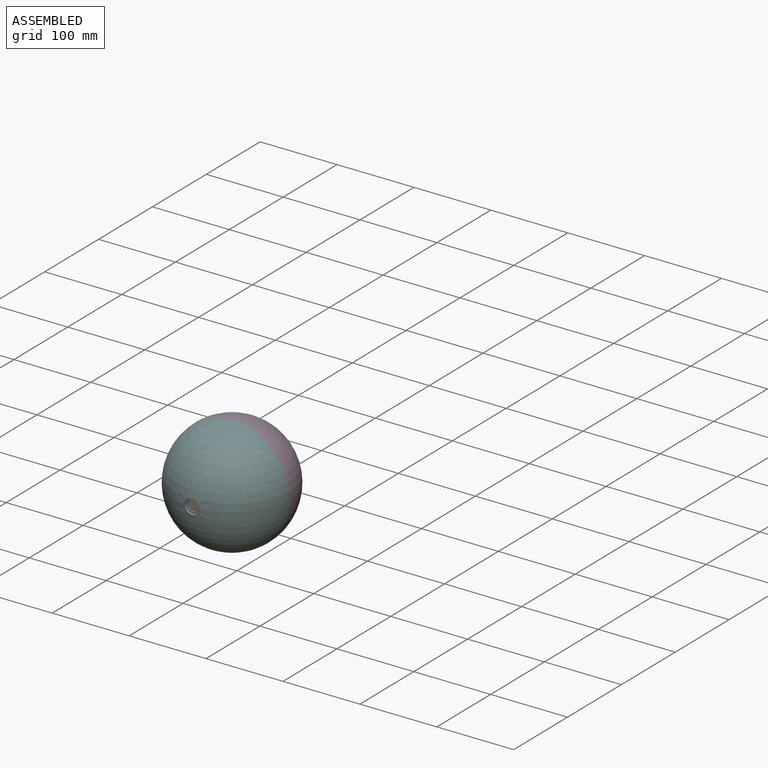
[diagram: assembled view]
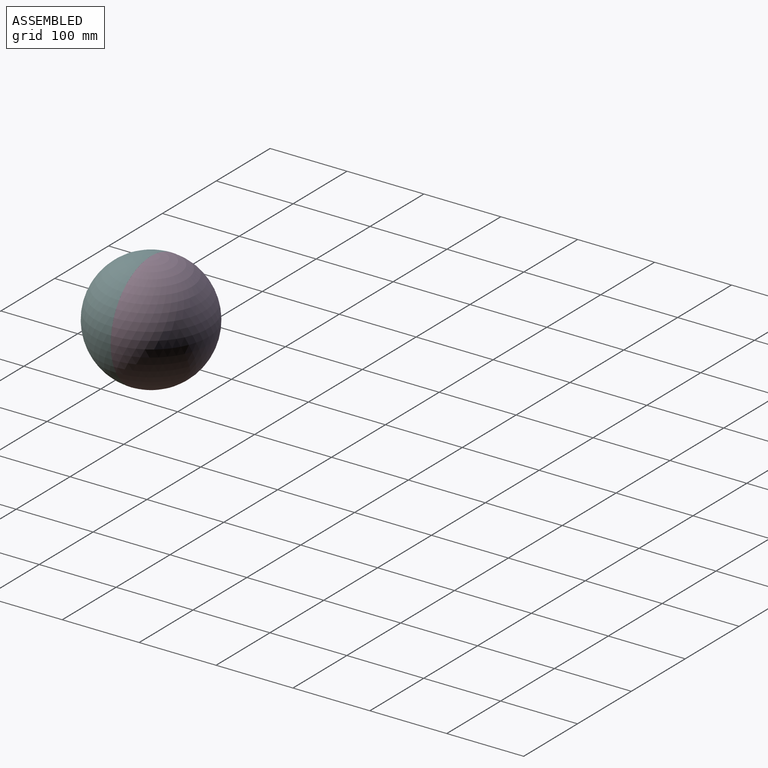
[diagram: assembled view, second angle]
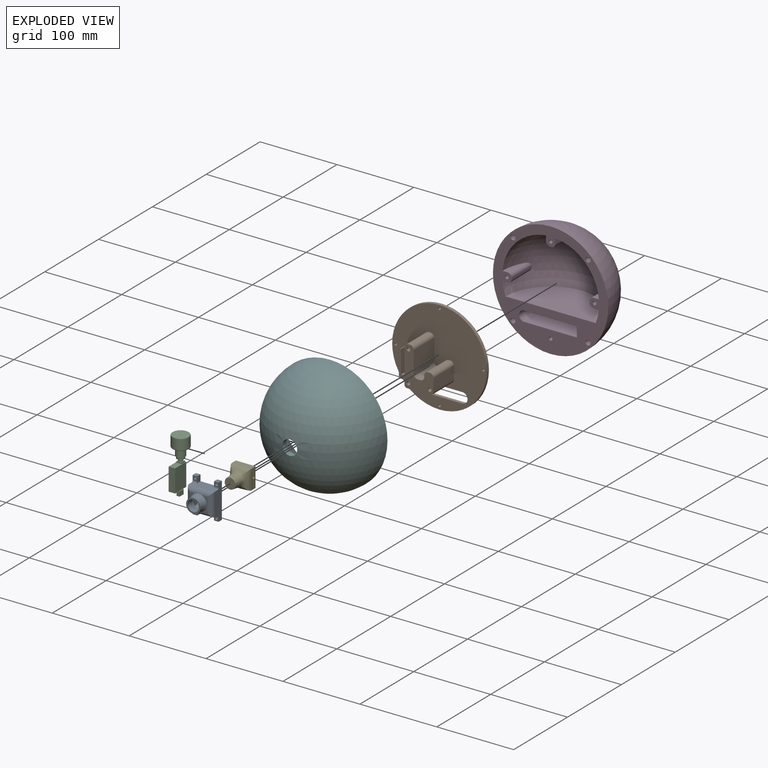
[diagram: exploded view]
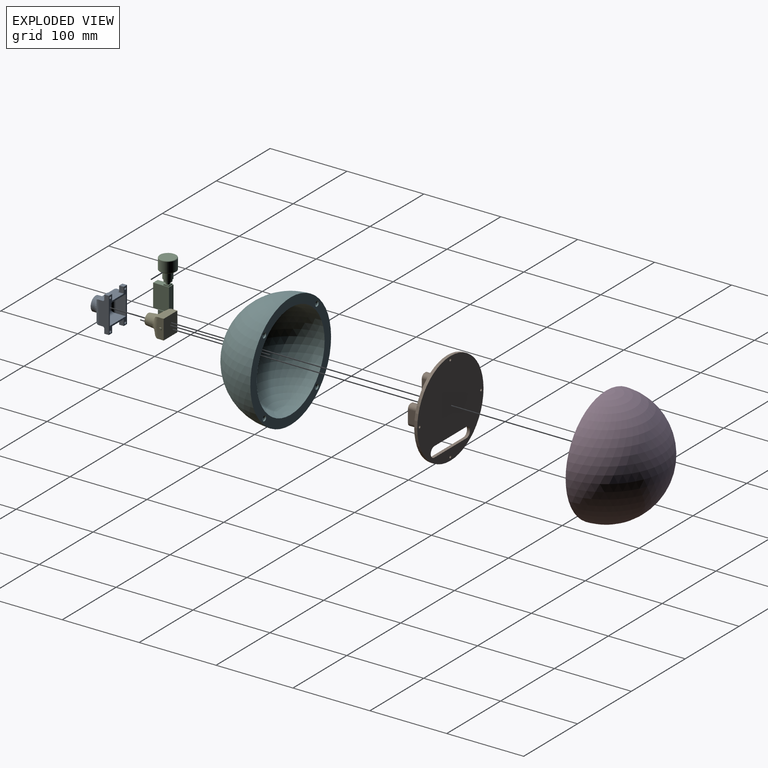
[diagram: exploded view, second angle]
ASSEMBLY  parts=6 mates=5
PART A: 50 faces, bbox 33.8x29x46 mm
  f0: plane 18x5.47mm, normal (0,-1,0), area 33.6mm2, adj f2,f34,f35,f36
  f1: plane 33.75x13.19mm, normal (0,0,-1), area 343.8mm2, adj f9,f11,f17,f20,f22,f35,f37,f39
  f2: cone r=9.25mm half-angle=14deg, axis (0,1,0), area 319.8mm2, adj f0,f5,f12,f37,f38
  f3: cylinder r=7.25mm len=14.5mm, axis (0,-1,0), area 239mm2, adj f4,f8
  f4: plane 18.5x18.5mm, normal (0,-1,0), area 103.7mm2, adj f3,f5
  f5: cylinder r=9.25mm len=18.5mm, axis (0,-1,0), area 290.6mm2, adj f2,f4
  f6: plane 21.75x18mm, normal (0,1,0), area 151mm2, adj f7,f42,f43,f44,f45
  f7: cylinder r=8.75mm len=17.5mm, axis (0,-1,0), area 41.4mm2, adj f6,f8
  f8: cone r=7.25mm half-angle=14deg, axis (0,1,0), area 310.9mm2, adj f3,f7
  f9: plane 46x13mm, normal (-1,0,0), area 487.7mm2, adj f1,f10,f17,f23,f25,f30,f33,f34
  f10: plane 33.75x13.19mm, normal (0,0,1), area 343.8mm2, adj f9,f11,f17,f26,f32,f36,f38,f40
  f11: plane 46x13mm, normal (1,0,0), area 487.7mm2, adj f1,f10,f17,f18,f21,f27,f29,f41
  f12: plane 18x5.47mm, normal (0,-1,0), area 33.6mm2, adj f2,f39,f40,f41
  f13: plane 29.75x13mm, normal (0,0,-1), area 386.8mm2, adj f14,f16,f17,f44
  f14: plane 26x13mm, normal (1,0,0), area 338mm2, adj f13,f15,f17,f42
  f15: plane 29.75x13mm, normal (0,0,1), area 386.8mm2, adj f14,f16,f17,f43
  f16: plane 26x13mm, normal (-1,0,0), area 338mm2, adj f13,f15,f17,f45
  f17: plane 46x33.75mm, normal (0,1,0), area 398.8mm2, adj f1,f9,f10,f11,f13,f14,f15,f16
  f18: plane 6x6mm, normal (0,0,-1), area 36mm2, adj f11,f17,f20,f21
  f19: cylinder r=1.6mm len=6mm, axis (0,1,0), area 60.3mm2, adj f17,f21
  f20: plane 8x8mm, normal (-1,0,0), area 48.9mm2, adj f1,f17,f18,f21,f49
  f21: plane 6x6mm, normal (0,-1,0), area 28mm2, adj f11,f18,f19,f20,f49
  f22: plane 8x8mm, normal (1,0,0), area 48.9mm2, adj f1,f17,f23,f25,f48
  f23: plane 6x6mm, normal (0,0,-1), area 36mm2, adj f9,f17,f22,f25
  f24: cylinder r=1.6mm len=6mm, axis (0,1,0), area 60.3mm2, adj f17,f25
  f25: plane 6x6mm, normal (0,-1,0), area 28mm2, adj f9,f22,f23,f24,f48
  f26: plane 8x8mm, normal (-1,0,0), area 48.9mm2, adj f10,f17,f27,f29,f47
  f27: plane 6x6mm, normal (0,0,1), area 36mm2, adj f11,f17,f26,f29
  f28: cylinder r=1.6mm len=6mm, axis (0,1,0), area 60.3mm2, adj f17,f29
  f29: plane 6x6mm, normal (0,-1,0), area 28mm2, adj f11,f26,f27,f28,f47
  f30: plane 6x6mm, normal (0,0,1), area 36mm2, adj f9,f17,f32,f33
  f31: cylinder r=1.6mm len=6mm, axis (0,1,0), area 60.3mm2, adj f17,f33
  f32: plane 8x8mm, normal (1,0,0), area 48.9mm2, adj f10,f17,f30,f33,f46
  f33: plane 6x6mm, normal (0,-1,0), area 28mm2, adj f9,f30,f31,f32,f46
  f34: cylinder r=6mm len=30mm, axis (0,0,-1), area 241.6mm2, adj f0,f9,f35,f36
  f35: cylinder r=6mm len=11.47mm, axis (1,0,0), area 87.5mm2, adj f0,f1,f34,f37
  f36: cylinder r=6mm len=11.47mm, axis (-1,0,0), area 87.5mm2, adj f0,f10,f34,f38
  f37: bspline ~10.82x6mm, area 90.9mm2, adj f1,f2,f35,f39
  f38: bspline ~10.82x6mm, area 90.9mm2, adj f2,f10,f36,f40
  f39: cylinder r=6mm len=11.47mm, axis (1,0,0), area 87.5mm2, adj f1,f12,f37,f41
  f40: cylinder r=6mm len=11.47mm, axis (-1,0,0), area 87.5mm2, adj f10,f12,f38,f41
  f41: cylinder r=6mm len=30mm, axis (0,0,1), area 241.6mm2, adj f11,f12,f39,f40
  f42: cylinder r=4mm len=26mm, axis (0,0,1), area 138.2mm2, adj f6,f14,f43,f44
  f43: cylinder r=4mm len=29.75mm, axis (-1,0,0), area 161.8mm2, adj f6,f15,f42,f45
  f44: cylinder r=4mm len=29.75mm, axis (1,0,0), area 161.8mm2, adj f6,f13,f42,f45
  f45: cylinder r=4mm len=26mm, axis (0,0,-1), area 138.2mm2, adj f6,f16,f43,f44
  f46: cylinder r=2mm len=6mm, axis (-1,0,0), area 18.8mm2, adj f9,f10,f32,f33
  f47: cylinder r=2mm len=6mm, axis (1,0,0), area 18.8mm2, adj f10,f11,f26,f29
  f48: cylinder r=2mm len=6mm, axis (1,0,0), area 18.8mm2, adj f1,f9,f22,f25
  f49: cylinder r=2mm len=6mm, axis (-1,0,0), area 18.8mm2, adj f1,f11,f20,f21
PART B: 48 faces, bbox 123x42x123 mm
  f0: plane 123x123mm, normal (0,-1,0), area 9362.7mm2, adj f1,f2,f4,f5,f6,f7,f8,f9
  f1: plane 8x1.5mm, normal (0,0,-1), area 12mm2, adj f0,f35,f37,f45
  f2: plane 44x38mm, normal (-1,0,0), area 1384mm2, adj f0,f12,f27,f35,f45,f46,f47
  f3: plane 123x123mm, normal (0,1,0), area 10903.7mm2, adj f4,f19,f20,f21,f22,f23,f24,f25
  f4: cylinder r=61.5mm len=123mm, axis (0,1,0), area 1545.7mm2, adj f0,f3
  f5: plane 38x2mm, normal (0,0,1), area 76mm2, adj f0,f12,f27,f32
  f6: plane 38x29.75mm, normal (0,0,-1), area 1130.5mm2, adj f0,f12,f28,f47
  f7: plane 38x16mm, normal (1,0,0), area 608mm2, adj f0,f12,f28,f29
  f8: plane 38x2mm, normal (0,0,1), area 76mm2, adj f0,f12,f29,f30
  f9: plane 38x2mm, normal (-1,0,0), area 76mm2, adj f0,f12,f30,f31
  f10: plane 38x3.75mm, normal (0,0,1), area 142.5mm2, adj f0,f12,f31,f33
  f11: plane 38x28mm, normal (1,0,0), area 1064mm2, adj f0,f12,f32,f33
  f12: plane 52x37.75mm, normal (0,-1,0), area 1058.4mm2, adj f2,f5,f6,f7,f8,f9,f10,f11
  f13: cone r=0mm half-angle=59deg, axis (0,-1,0), area 20.2mm2, adj f14
  f14: cylinder r=2.35mm len=6.4mm, axis (0,-1,0), area 94.5mm2, adj f12,f13
  f15: cone r=0mm half-angle=59deg, axis (0,-1,0), area 20.2mm2, adj f16
  f16: cylinder r=2.35mm len=6.4mm, axis (0,-1,0), area 94.5mm2, adj f12,f15
  f17: cone r=0mm half-angle=59deg, axis (0,-1,0), area 20.2mm2, adj f18
  f18: cylinder r=2.35mm len=6.4mm, axis (0,-1,0), area 94.5mm2, adj f12,f17
  f19: plane 59.5x4mm, normal (0,0,-1), area 238mm2, adj f0,f3,f20,f22
  f20: cylinder r=6.75mm len=13.5mm, axis (0,-1,0), area 84.8mm2, adj f0,f3,f19,f21
  f21: plane 59.5x4mm, normal (0,0,1), area 238mm2, adj f0,f3,f20,f22
  f22: cylinder r=6.75mm len=13.5mm, axis (0,-1,0), area 84.8mm2, adj f0,f3,f19,f21
  f23: cylinder r=1.6mm len=4mm, axis (0,-1,0), area 40.2mm2, adj f0,f3
  f24: cylinder r=1.6mm len=4mm, axis (0,-1,0), area 40.2mm2, adj f0,f3
  f25: cylinder r=1.6mm len=4mm, axis (0,-1,0), area 40.2mm2, adj f0,f3
  f26: cylinder r=1.6mm len=4mm, axis (0,-1,0), area 40.2mm2, adj f0,f3
  f27: cylinder r=5mm len=38mm, axis (0,-1,0), area 298.5mm2, adj f0,f2,f5,f12
  f28: cylinder r=5mm len=38mm, axis (0,-1,0), area 298.5mm2, adj f0,f6,f7,f12
  f29: cylinder r=5mm len=38mm, axis (0,-1,0), area 298.5mm2, adj f0,f7,f8,f12
  f30: cylinder r=5mm len=38mm, axis (0,-1,0), area 298.5mm2, adj f0,f8,f9,f12
  f31: cylinder r=5mm len=38mm, axis (0,-1,0), area 298.5mm2, adj f0,f9,f10,f12
  f32: cylinder r=5mm len=38mm, axis (0,1,0), area 298.5mm2, adj f0,f5,f11,f12
  f33: cylinder r=5mm len=38mm, axis (0,-1,0), area 298.5mm2, adj f0,f10,f11,f12
  f34: plane 8x7mm, normal (0,0,1), area 56mm2, adj f0,f35,f42,f46
  f35: plane 36x10mm, normal (0,-1,0), area 303.9mm2, adj f1,f2,f34,f36,f40,f45,f46
  f36: plane 22x5.5mm, normal (0,0,1), area 121mm2, adj f35,f37,f39,f40
  f37: plane 30x2mm, normal (1,0,0), area 60mm2, adj f0,f1,f36,f39,f44
  f38: plane 30x2.5mm, normal (0,0,-1), area 75mm2, adj f0,f39,f43,f44
  f39: plane 35x8.5mm, normal (0,-1,0), area 126.7mm2, adj f36,f37,f38,f40,f41,f42,f43,f44
  f40: plane 30x22mm, normal (1,0,0), area 660mm2, adj f35,f36,f39,f42
  f41: plane 30x29mm, normal (-1,0,0), area 870mm2, adj f0,f39,f42,f43
  f42: cylinder r=3mm len=30mm, axis (0,1,0), area 141.4mm2, adj f0,f34,f39,f40,f41
  f43: cylinder r=3mm len=30mm, axis (0,-1,0), area 141.4mm2, adj f0,f38,f39,f41
  f44: cylinder r=3mm len=30mm, axis (0,1,0), area 141.4mm2, adj f0,f37,f38,f39
  f45: cylinder r=3mm len=8mm, axis (0,1,0), area 37.7mm2, adj f0,f1,f2,f35
  f46: cylinder r=3mm len=8mm, axis (0,-1,0), area 37.7mm2, adj f0,f2,f34,f35
  f47: cylinder r=3mm len=38mm, axis (0,1,0), area 179.1mm2, adj f0,f2,f6,f12
PART C: 28 faces, bbox 27.9x23.3x68.5 mm
  f0: plane 20.6x8.4mm, normal (0,0,1), area 127.5mm2, adj f1,f2,f4,f5,f6,f7,f8,f9
  f1: plane 29.5x8.4mm, normal (1,0,0), area 247.8mm2, adj f0,f3,f4,f5
  f2: plane 29.5x8.4mm, normal (-1,0,0), area 247.8mm2, adj f0,f3,f4,f5
  f3: plane 20.6x8.4mm, normal (0,0,-1), area 150.5mm2, adj f1,f2,f4,f5,f22,f24,f25
  f4: plane 29.5x20.6mm, normal (0,1,0), area 607.7mm2, adj f0,f1,f2,f3,f27
  f5: plane 29.5x20.6mm, normal (0,-1,0), area 607.7mm2, adj f0,f1,f2,f3
  f6: plane 6.7x1.5mm, normal (0,-1,0), area 10.1mm2, adj f0,f7,f9,f10
  f7: plane 6.8x1.5mm, normal (1,0,0), area 10.2mm2, adj f0,f6,f8,f10
  f8: plane 6.7x1.5mm, normal (0,1,0), area 10.1mm2, adj f0,f7,f9,f10
  f9: plane 6.8x1.5mm, normal (-1,0,0), area 10.2mm2, adj f0,f6,f8,f10
  f10: plane 6.8x6.7mm, normal (0,0,1), area 23.9mm2, adj f6,f7,f8,f9,f11
  f11: cylinder r=2.62mm len=5.25mm, axis (0,0,-1), area 54.4mm2, adj f10,f15
  f12: cylinder r=6mm len=12mm, axis (0,0,-1), area 339.3mm2, adj f13,f21
  f13: cone r=6mm half-angle=60deg, axis (0,0,1), area 43.5mm2, adj f12,f14
  f14: cylinder r=4.9mm len=9.8mm, axis (0,0,-1), area 79mm2, adj f13,f15
  f15: plane 9.8x9.8mm, normal (0,0,-1), area 53.8mm2, adj f11,f14
  f16: plane 19.5x19.5mm, normal (0,0,1), area 298.6mm2, adj f17
  f17: torus R=9.75mm, axis (0,0,-1), area 102.5mm2, adj f16,f18
  f18: cylinder r=10.75mm len=21.5mm, axis (0,0,-1), area 878.1mm2, adj f17,f19
  f19: torus R=9.75mm, axis (0,0,-1), area 102.5mm2, adj f18,f20
  f20: plane 19.5x19.5mm, normal (0,0,-1), area 144.7mm2, adj f19,f21
  f21: torus R=7mm, axis (0,0,-1), area 62.8mm2, adj f12,f20
  f22: plane 6x4mm, normal (-1,0,0), area 24mm2, adj f3,f23,f25,f26,f27
  f23: plane 7.5x6mm, normal (0,1,0), area 45mm2, adj f22,f24,f26,f27
  f24: plane 6x4mm, normal (1,0,0), area 24mm2, adj f3,f23,f25,f26,f27
  f25: plane 7.5x6mm, normal (0,-1,0), area 45mm2, adj f3,f22,f24,f26
  f26: plane 7.5x4mm, normal (0,0,-1), area 30mm2, adj f22,f23,f24,f25
  f27: plane 7.5x1mm, normal (0,0,1), area 7.5mm2, adj f4,f22,f23,f24
PART D: 44 faces, bbox 150x75x150 mm
  f0: plane 150x150mm, normal (0,-1,0), area 7810.2mm2, adj f1,f2,f3,f4,f5,f6,f7,f9
  f1: plane 117.3x58.65mm, normal (0,0,1), area 5403.5mm2, adj f0,f2
  f2: sphere r=63mm, area 15642.7mm2, adj f0,f1,f9,f10,f11,f12,f13,f14
  f3: sphere r=75mm, area 35342.9mm2, adj f0
  f4: plane 68.4x35mm, normal (0,0,-1), area 2394mm2, adj f0,f5,f7,f21
  f5: cylinder r=6.75mm len=35mm, axis (0,-1,0), area 742.2mm2, adj f0,f4,f6,f19
  f6: plane 68.4x35mm, normal (0,0,1), area 2394mm2, adj f0,f5,f7,f18
  f7: plane 35x13.5mm, normal (-1,0,0), area 472.5mm2, adj f0,f4,f6,f20
  f8: plane 69.15x7.5mm, normal (0,-1,0), area 512.6mm2, adj f18,f19,f20,f21
  f9: plane 28.79x7mm, normal (1,0,0), area 135.9mm2, adj f0,f2,f35
  f10: plane 37.38x2mm, normal (0,0,-1), area 74.7mm2, adj f0,f2,f34,f35
  f11: plane 28.79x7mm, normal (-1,0,0), area 135.9mm2, adj f0,f2,f34
  f12: plane 28.79x7mm, normal (0,0,-1), area 135.9mm2, adj f0,f2,f31
  f13: plane 37.4x2.02mm, normal (-1,0,0), area 74.7mm2, adj f0,f2,f30,f31
  f14: plane 28.79x7mm, normal (0,0,1), area 135.9mm2, adj f0,f2,f30
  f15: plane 37.4x2.02mm, normal (1,0,0), area 74.7mm2, adj f0,f2,f32,f33
  f16: plane 28.79x7mm, normal (0,0,-1), area 135.9mm2, adj f0,f2,f33
  f17: plane 28.79x7mm, normal (0,0,1), area 135.9mm2, adj f0,f2,f32
  f18: plane 68.4x3mm, normal (0,-0.71,0.71), area 283.8mm2, adj f6,f8,f19,f20
  f19: cone r=3.75mm half-angle=45deg, axis (0,-1,0), area 70mm2, adj f5,f8,f18,f21
  f20: plane 13.5x3mm, normal (-0.71,-0.71,0), area 44.5mm2, adj f7,f8,f18,f21
  f21: plane 68.4x3mm, normal (0,-0.71,-0.71), area 283.8mm2, adj f4,f8,f19,f20
  f22: cone r=0mm half-angle=59deg, axis (0,-1,0), area 39.9mm2, adj f23
  f23: cylinder r=3.3mm len=6.6mm, axis (0,-1,0), area 38.4mm2, adj f0,f22
  f24: cone r=0mm half-angle=59deg, axis (0,-1,0), area 39.9mm2, adj f25
  f25: cylinder r=3.3mm len=6.6mm, axis (0,-1,0), area 38.4mm2, adj f0,f24
  f26: cone r=0mm half-angle=59deg, axis (0,-1,0), area 39.9mm2, adj f27
  f27: cylinder r=3.3mm len=6.6mm, axis (0,-1,0), area 38.4mm2, adj f0,f26
  f28: cone r=0mm half-angle=59deg, axis (0,-1,0), area 39.9mm2, adj f29
  f29: cylinder r=3.3mm len=6.6mm, axis (0,-1,0), area 38.4mm2, adj f0,f28
  f30: cylinder r=5mm len=37.36mm, axis (0,-1,0), area 269.9mm2, adj f0,f2,f13,f14
  f31: cylinder r=5mm len=37.36mm, axis (0,1,0), area 269.9mm2, adj f0,f2,f12,f13
  f32: cylinder r=5mm len=37.36mm, axis (0,1,0), area 269.9mm2, adj f0,f2,f15,f17
  f33: cylinder r=5mm len=37.36mm, axis (0,-1,0), area 269.9mm2, adj f0,f2,f15,f16
  f34: cylinder r=5mm len=37.36mm, axis (0,-1,0), area 269.9mm2, adj f0,f2,f10,f11
  f35: cylinder r=5mm len=37.36mm, axis (0,1,0), area 269.9mm2, adj f0,f2,f9,f10
  f36: cone r=0mm half-angle=59deg, axis (0,-1,0), area 20.2mm2, adj f37
  f37: cylinder r=2.35mm len=7mm, axis (0,-1,0), area 103.3mm2, adj f0,f36
  f38: cone r=0mm half-angle=59deg, axis (0,-1,0), area 20.2mm2, adj f39
  f39: cylinder r=2.35mm len=7mm, axis (0,-1,0), area 103.3mm2, adj f0,f38
  f40: cone r=0mm half-angle=59deg, axis (0,-1,0), area 20.2mm2, adj f41
  f41: cylinder r=2.35mm len=7mm, axis (0,-1,0), area 103.3mm2, adj f0,f40
  f42: cone r=0mm half-angle=59deg, axis (0,-1,0), area 20.2mm2, adj f43
  f43: cylinder r=2.35mm len=7mm, axis (0,-1,0), area 103.3mm2, adj f0,f42
PART E: 19 faces, bbox 30.5x29x30.5 mm
  f0: bspline ~18.92x5.24mm, area 96.6mm2, adj f1,f3,f11,f14
  f1: bspline ~18.92x5.24mm, area 96.6mm2, adj f0,f2,f9,f14
  f2: bspline ~18.92x5.24mm, area 96.6mm2, adj f1,f3,f10,f14
  f3: bspline ~18.92x5.24mm, area 96.6mm2, adj f0,f2,f12,f14
  f4: plane 25.5x8.61mm, normal (0,0,1), area 207mm2, adj f5,f6,f7,f10
  f5: plane 25.5x25.5mm, normal (0,1,0), area 650.2mm2, adj f4,f6,f7,f8
  f6: plane 25.5x8.61mm, normal (-1,0,0), area 198.7mm2, adj f4,f5,f8,f9,f17
  f7: plane 25.5x8.61mm, normal (1,0,0), area 198.7mm2, adj f4,f5,f8,f12,f15
  f8: plane 25.5x8.61mm, normal (0,0,-1), area 207mm2, adj f5,f6,f7,f11
  f9: bspline ~30.51x6.6mm, area 135.1mm2, adj f1,f6,f10,f11
  f10: bspline ~30.51x6.6mm, area 135.1mm2, adj f2,f4,f9,f12
  f11: bspline ~30.51x6.6mm, area 135.1mm2, adj f0,f8,f9,f12
  f12: bspline ~30.51x6.6mm, area 135.1mm2, adj f3,f7,f10,f11
  f13: plane 14x14mm, normal (0,-1,0), area 153.9mm2, adj f14
  f14: bspline ~15.99x15.99mm, area 473.6mm2, adj f0,f1,f2,f3,f13
  f15: cylinder r=1.62mm len=3.25mm, axis (-1,0,0), area 18.4mm2, adj f7,f16
  f16: plane 3.25x3.25mm, normal (1,0,0), area 8.3mm2, adj f15
  f17: cylinder r=1.62mm len=3.25mm, axis (1,0,0), area 18.4mm2, adj f6,f18
  f18: plane 3.25x3.25mm, normal (-1,0,0), area 8.3mm2, adj f17
PART F: 13 faces, bbox 150x77.4x150 mm
  f0: sphere r=75mm, area 35049.1mm2, adj f2,f3
  f1: sphere r=63mm, area 24017.5mm2, adj f2,f4
  f2: plane 150x150mm, normal (0,1,0), area 5065.6mm2, adj f0,f1,f6,f8,f10,f12
  f3: cylinder r=9.65mm len=19.3mm, axis (0,1,0), area 246.8mm2, adj f0,f4
  f4: torus R=19.65mm, axis (0,1,0), area 997.8mm2, adj f1,f3
  f5: cone r=0mm half-angle=59deg, axis (0,1,0), area 39.9mm2, adj f6
  f6: cylinder r=3.3mm len=6.6mm, axis (0,1,0), area 38.4mm2, adj f2,f5
  f7: cone r=0mm half-angle=59deg, axis (0,1,0), area 39.9mm2, adj f8
  f8: cylinder r=3.3mm len=6.6mm, axis (0,1,0), area 38.4mm2, adj f2,f7
  f9: cone r=0mm half-angle=59deg, axis (0,1,0), area 39.9mm2, adj f10
  f10: cylinder r=3.3mm len=6.6mm, axis (0,1,0), area 38.4mm2, adj f2,f9
  f11: cone r=0mm half-angle=59deg, axis (0,1,0), area 39.9mm2, adj f12
  f12: cylinder r=3.3mm len=6.6mm, axis (0,1,0), area 38.4mm2, adj f2,f11
PLACE A rot(axis=(-0.05,0,1),0deg) t=(-34.91,-31.14,-46.94)mm
PLACE B t=(-34.91,38.99,-46.94)mm
PLACE C rot(axis=(0,0,-1),90deg) t=(-63.19,18.3,-46.3)mm
PLACE D rot(axis=(-0.05,0,1),0deg) t=(-34.91,40.95,-46.94)mm
PLACE E rot(axis=(-0.05,0,1),0deg) t=(-34.91,-1.21,-46.94)mm fixed
PLACE F rot(axis=(-0.05,0,1),0deg) t=(-34.91,40.92,-46.94)mm
MATE slider A.f31 <-> B.f17  axis (0,1,0) through (-48.79,-8.14,-26.94)mm
MATE slider F.f5 <-> D.f26  axis (0,1,0) through (13.88,40.92,-95.73)mm
MATE planar C.f23 <-> B.f2  axis (1,0,0) through (-53.79,18.55,-64.05)mm
MATE slider F.f3 <-> A.f2  axis (0,1,0) through (-34.91,-33.46,-46.94)mm
MATE slider A.f2 <-> E.f13  axis (0,-1,0) through (-34.91,-31.14,-46.94)mm
